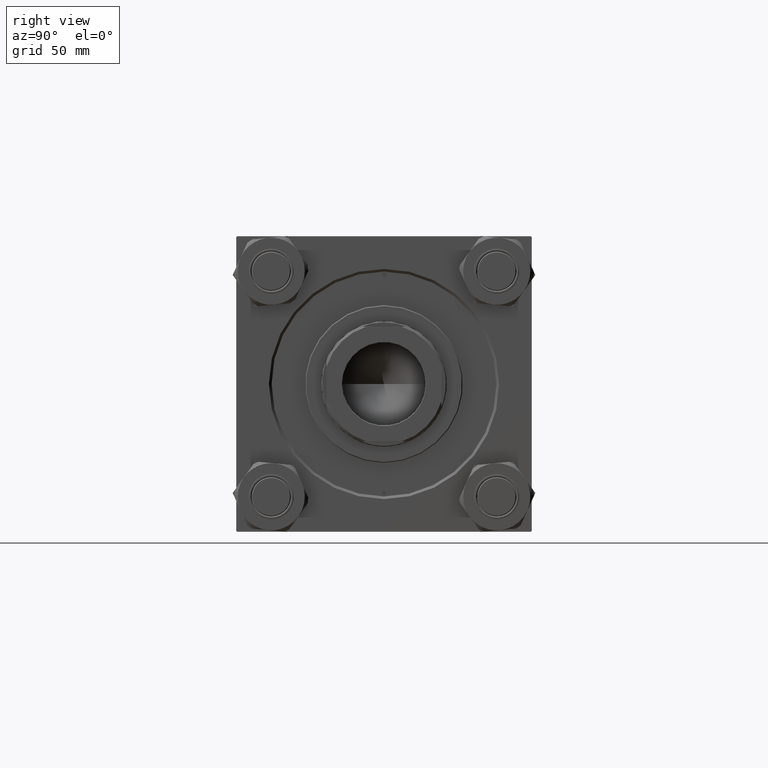
[diagram: clean part render]
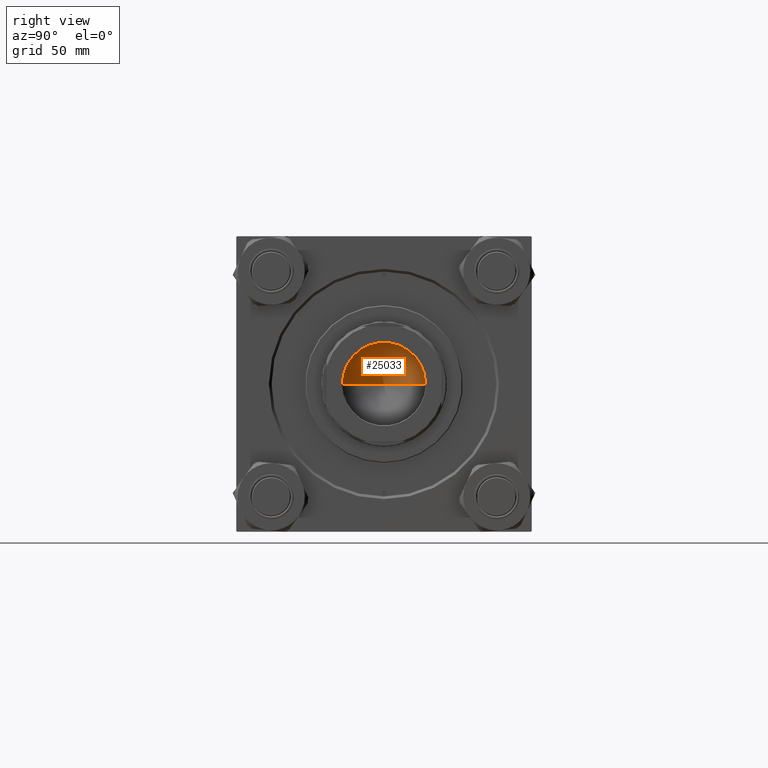
[diagram: same view with one face highlighted and labeled with its STEP entity id]
A machine part, right view. The second image highlights one B-rep face of the part: STEP entity #25033.
In plain terms, the highlighted conical surface has half-angle 59 deg.
Its self-contained STEP definition (entity closure, byte-faithful):
#1955 = AXIS2_PLACEMENT_3D ( 'NONE', #21283, #10044, #26122 ) ;
#2436 = VERTEX_POINT ( 'NONE', #5634 ) ;
#5375 = DIRECTION ( 'NONE',  ( -0.000000000000000000, -0.000000000000000000, 1.000000000000000000 ) ) ;
#5634 = CARTESIAN_POINT ( 'NONE',  ( -23.24999999999998579, 2.847303808017594561E-15, 128.9999999999999716 ) ) ;
#9340 = DIRECTION ( 'NONE',  ( -0.8571673007021117785, 1.049727191138617956E-16, 0.5150380749100550437 ) ) ;
#10044 = DIRECTION ( 'NONE',  ( -0.000000000000000000, -0.000000000000000000, 1.000000000000000000 ) ) ;
#10431 = AXIS2_PLACEMENT_3D ( 'NONE', #20681, #5375, #48505 ) ;
#10940 = EDGE_CURVE ( 'NONE', #2436, #36499, #39424, .T. ) ;
#14515 = CONICAL_SURFACE ( 'NONE', #10431, 23.24999999999998579, 1.029744258676653423 ) ;
#16852 = FACE_OUTER_BOUND ( 'NONE', #49393, .T. ) ;
#20428 = LINE ( 'NONE', #35494, #26131 ) ;
#20681 = CARTESIAN_POINT ( 'NONE',  ( 0.000000000000000000, 0.000000000000000000, 128.9999999999999716 ) ) ;
#21283 = CARTESIAN_POINT ( 'NONE',  ( 0.000000000000000000, 0.000000000000000000, 128.9999999999999716 ) ) ;
#21589 = CARTESIAN_POINT ( 'NONE',  ( -23.24999999999998579, 2.847303808017594561E-15, 128.9999999999999716 ) ) ;
#22436 = VECTOR ( 'NONE', #9340, 1000.000000000000000 ) ;
#25033 = ADVANCED_FACE ( 'NONE', ( #16852 ), #14515, .F. ) ;
#26122 = DIRECTION ( 'NONE',  ( 1.000000000000000000, 0.000000000000000000, 0.000000000000000000 ) ) ;
#26131 = VECTOR ( 'NONE', #39569, 1000.000000000000000 ) ;
#26170 = VERTEX_POINT ( 'NONE', #26201 ) ;
#26201 = CARTESIAN_POINT ( 'NONE',  ( -1.584115414415908206E-14, 0.000000000000000000, 115.0299906076091787 ) ) ;
#27987 = CARTESIAN_POINT ( 'NONE',  ( 23.24999999999998579, 0.000000000000000000, 128.9999999999999716 ) ) ;
#29487 = LINE ( 'NONE', #21589, #22436 ) ;
#35406 = EDGE_CURVE ( 'NONE', #26170, #36499, #20428, .T. ) ;
#35494 = CARTESIAN_POINT ( 'NONE',  ( 23.24999999999998579, 0.000000000000000000, 128.9999999999999716 ) ) ;
#36499 = VERTEX_POINT ( 'NONE', #27987 ) ;
#39424 = CIRCLE ( 'NONE', #1955, 23.24999999999998579 ) ;
#39569 = DIRECTION ( 'NONE',  ( 0.8571673007021117785, 0.000000000000000000, 0.5150380749100550437 ) ) ;
#46845 = ORIENTED_EDGE ( 'NONE', *, *, #47920, .T. ) ;
#47916 = ORIENTED_EDGE ( 'NONE', *, *, #10940, .T. ) ;
#47920 = EDGE_CURVE ( 'NONE', #26170, #2436, #29487, .T. ) ;
#48098 = ORIENTED_EDGE ( 'NONE', *, *, #35406, .F. ) ;
#48505 = DIRECTION ( 'NONE',  ( 1.000000000000000000, 0.000000000000000000, 0.000000000000000000 ) ) ;
#49393 = EDGE_LOOP ( 'NONE', ( #48098, #46845, #47916 ) ) ;